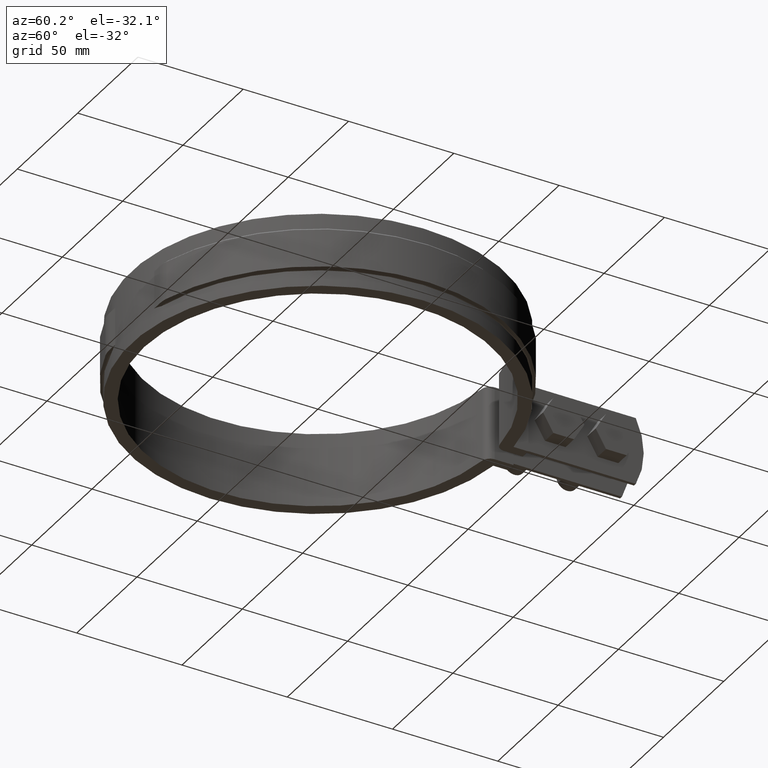
[diagram: clean part render]
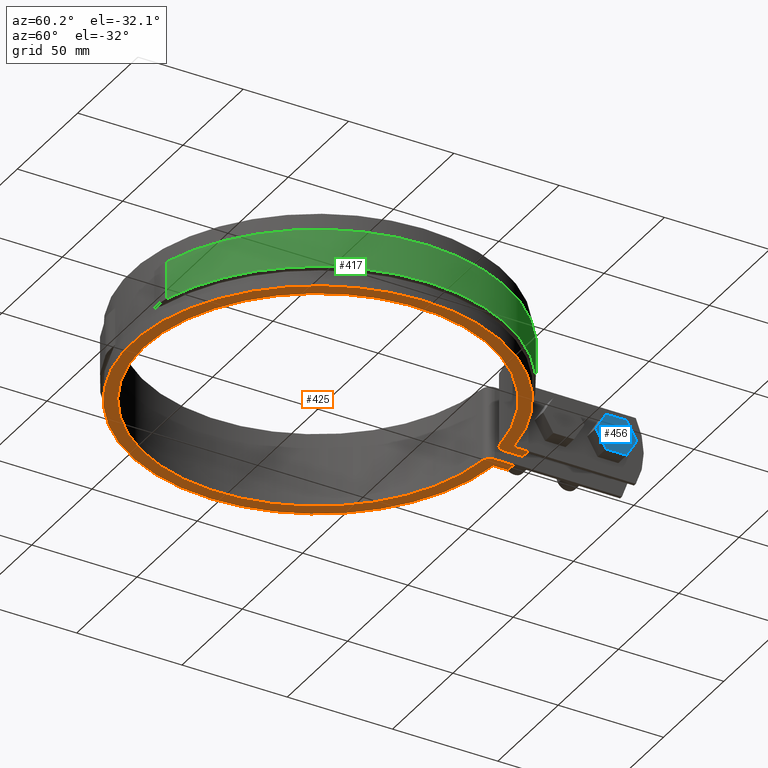
[diagram: same view with three faces highlighted in distinct colors, each labeled with its STEP entity id]
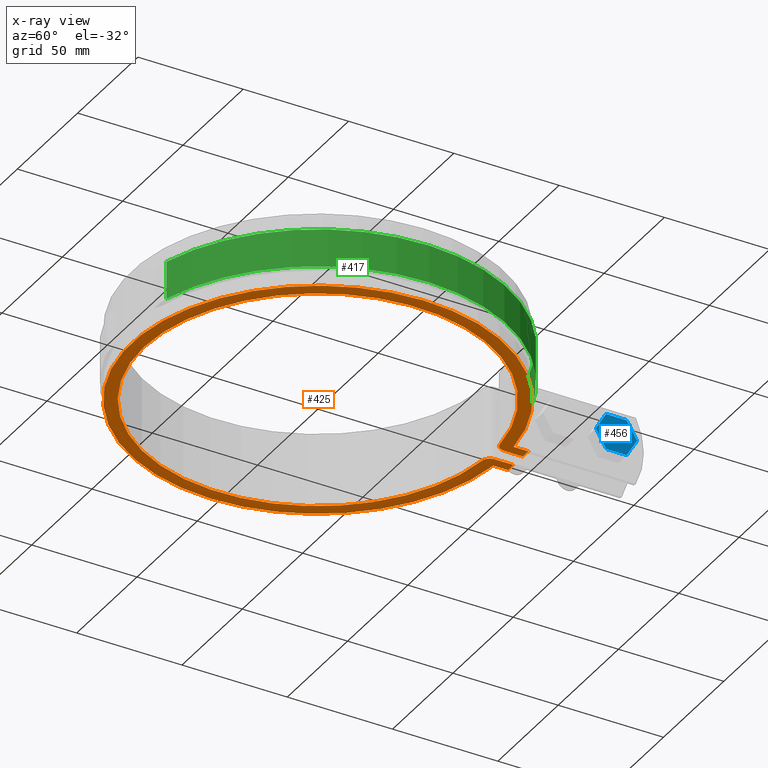
[diagram: x-ray of the same camera — body ghosted, the three highlighted faces saturated]
A machine part, auxiliary view with three faces highlighted in distinct colors.
The next image is the same camera in x-ray (body ghosted, the three faces saturated) — at least one of them is partly hidden behind the body in this view.
Their STEP definitions:

[orange] entity #425 — the highlighted planar face has unit normal (0, 0, 1).
#425 = ADVANCED_FACE( '', ( #710 ), #711, .F. );
#710 = FACE_OUTER_BOUND( '', #1788, .T. );
#711 = PLANE( '', #1789 );
#1788 = EDGE_LOOP( '', ( #4308, #4309, #4310, #4311, #4312, #4313, #4314, #4315, #4316, #4317 ) );
#1789 = AXIS2_PLACEMENT_3D( '', #4318, #4319, #4320 );
#4308 = ORIENTED_EDGE( '', *, *, #4944, .F. );
#4309 = ORIENTED_EDGE( '', *, *, #4937, .F. );
#4310 = ORIENTED_EDGE( '', *, *, #4922, .F. );
#4311 = ORIENTED_EDGE( '', *, *, #4920, .F. );
#4312 = ORIENTED_EDGE( '', *, *, #4864, .F. );
#4313 = ORIENTED_EDGE( '', *, *, #4842, .F. );
#4314 = ORIENTED_EDGE( '', *, *, #4895, .F. );
#4315 = ORIENTED_EDGE( '', *, *, #4945, .F. );
#4316 = ORIENTED_EDGE( '', *, *, #4906, .F. );
#4317 = ORIENTED_EDGE( '', *, *, #4781, .F. );
#4318 = CARTESIAN_POINT( '', ( 0.000000000000000, 0.000000000000000, -33.5000000000000 ) );
#4319 = DIRECTION( '', ( 0.000000000000000, 0.000000000000000, 1.00000000000000 ) );
#4320 = DIRECTION( '', ( 1.00000000000000, 0.000000000000000, 0.000000000000000 ) );
#4781 = EDGE_CURVE( '', #5305, #5307, #5308, .F. );
#4842 = EDGE_CURVE( '', #5420, #5422, #5423, .F. );
#4864 = EDGE_CURVE( '', #5422, #5458, #5459, .F. );
#4895 = EDGE_CURVE( '', #5508, #5420, #5510, .F. );
#4906 = EDGE_CURVE( '', #5307, #5528, #5529, .F. );
#4920 = EDGE_CURVE( '', #5458, #5551, #5552, .T. );
#4922 = EDGE_CURVE( '', #5551, #5554, #5555, .F. );
#4937 = EDGE_CURVE( '', #5554, #5573, #5574, .T. );
#4944 = EDGE_CURVE( '', #5573, #5305, #5582, .F. );
#4945 = EDGE_CURVE( '', #5528, #5508, #5583, .T. );
#5305 = VERTEX_POINT( '', #7113 );
#5307 = VERTEX_POINT( '', #7116 );
#5308 = LINE( '', #7117, #7118 );
#5420 = VERTEX_POINT( '', #7746 );
#5422 = VERTEX_POINT( '', #7749 );
#5423 = LINE( '', #7750, #7751 );
#5458 = VERTEX_POINT( '', #7999 );
#5459 = LINE( '', #8000, #8001 );
#5508 = VERTEX_POINT( '', #8366 );
#5510 = LINE( '', #8369, #8370 );
#5528 = VERTEX_POINT( '', #8403 );
#5529 = LINE( '', #8404, #8405 );
#5551 = VERTEX_POINT( '', #8434 );
#5552 = CIRCLE( '', #8435, 4.00000000000000 );
#5554 = VERTEX_POINT( '', #8438 );
#5555 = CIRCLE( '', #8439, 82.5000000000000 );
#5573 = VERTEX_POINT( '', #8464 );
#5574 = CIRCLE( '', #8465, 4.00000000000000 );
#5582 = LINE( '', #8477, #8478 );
#5583 = CIRCLE( '', #8479, 88.5000000000000 );
#7113 = CARTESIAN_POINT( '', ( -3.79999999999999, 95.1000000000000, -33.5000000000000 ) );
#7116 = CARTESIAN_POINT( '', ( -8.40000000000000, 95.1000000000000, -33.5000000000000 ) );
#7117 = CARTESIAN_POINT( '', ( -3.80000000000000, 95.1000000000000, -33.5000000000000 ) );
#7118 = VECTOR( '', #8923, 1000.00000000000 );
#7746 = CARTESIAN_POINT( '', ( 8.40000000000000, 95.1000000000000, -33.5000000000000 ) );
#7749 = CARTESIAN_POINT( '', ( 3.80000000000002, 95.1000000000000, -33.5000000000000 ) );
#7750 = CARTESIAN_POINT( '', ( 8.40000000000002, 95.1000000000000, -33.5000000000000 ) );
#7751 = VECTOR( '', #8982, 1000.00000000000 );
#7999 = CARTESIAN_POINT( '', ( 3.80000000000002, 86.1476058866409, -33.5000000000000 ) );
#8000 = CARTESIAN_POINT( '', ( 3.80000000000002, 95.1000000000000, -33.5000000000000 ) );
#8001 = VECTOR( '', #9014, 1000.00000000000 );
#8366 = CARTESIAN_POINT( '', ( 8.40000000000000, 88.1004540283420, -33.5000000000000 ) );
#8369 = CARTESIAN_POINT( '', ( 8.40000000000000, 88.1004540283420, -33.5000000000000 ) );
#8370 = VECTOR( '', #9050, 1000.00000000000 );
#8403 = CARTESIAN_POINT( '', ( -8.40000000000000, 88.1004540283420, -33.5000000000000 ) );
#8404 = CARTESIAN_POINT( '', ( -8.40000000000000, 95.1000000000000, -33.5000000000000 ) );
#8405 = VECTOR( '', #9060, 1000.00000000000 );
#8434 = CARTESIAN_POINT( '', ( 7.43930635838153, 82.1639015681835, -33.5000000000000 ) );
#8435 = AXIS2_PLACEMENT_3D( '', #9086, #9087, #9088 );
#8438 = CARTESIAN_POINT( '', ( -7.43930635838154, 82.1639015681835, -33.5000000000000 ) );
#8439 = AXIS2_PLACEMENT_3D( '', #9090, #9091, #9092 );
#8464 = CARTESIAN_POINT( '', ( -3.79999999999999, 86.1476058866409, -33.5000000000000 ) );
#8465 = AXIS2_PLACEMENT_3D( '', #9121, #9122, #9123 );
#8477 = CARTESIAN_POINT( '', ( -3.79999999999999, 86.1476058866409, -33.5000000000000 ) );
#8478 = VECTOR( '', #9134, 1000.00000000000 );
#8479 = AXIS2_PLACEMENT_3D( '', #9135, #9136, #9137 );
#8923 = DIRECTION( '', ( 1.00000000000000, 0.000000000000000, 0.000000000000000 ) );
#8982 = DIRECTION( '', ( 1.00000000000000, 0.000000000000000, 0.000000000000000 ) );
#9014 = DIRECTION( '', ( 6.10365667473321E-017, 1.00000000000000, 0.000000000000000 ) );
#9050 = DIRECTION( '', ( -6.42490176287706E-017, -1.00000000000000, 0.000000000000000 ) );
#9060 = DIRECTION( '', ( 6.42490176287706E-017, 1.00000000000000, 0.000000000000000 ) );
#9086 = CARTESIAN_POINT( '', ( 7.80000000000001, 86.1476058866409, -33.5000000000000 ) );
#9087 = DIRECTION( '', ( 0.000000000000000, 0.000000000000000, 1.00000000000000 ) );
#9088 = DIRECTION( '', ( 1.00000000000000, 0.000000000000000, 0.000000000000000 ) );
#9090 = CARTESIAN_POINT( '', ( 0.000000000000000, 0.000000000000000, -33.5000000000000 ) );
#9091 = DIRECTION( '', ( 0.000000000000000, 0.000000000000000, 1.00000000000000 ) );
#9092 = DIRECTION( '', ( 1.00000000000000, 0.000000000000000, 0.000000000000000 ) );
#9121 = CARTESIAN_POINT( '', ( -7.79999999999999, 86.1476058866409, -33.5000000000000 ) );
#9122 = DIRECTION( '', ( 0.000000000000000, 0.000000000000000, 1.00000000000000 ) );
#9123 = DIRECTION( '', ( 1.00000000000000, 0.000000000000000, 0.000000000000000 ) );
#9134 = DIRECTION( '', ( -6.10365667473321E-017, -1.00000000000000, 0.000000000000000 ) );
#9135 = CARTESIAN_POINT( '', ( 0.000000000000000, 0.000000000000000, -33.5000000000000 ) );
#9136 = DIRECTION( '', ( 0.000000000000000, 0.000000000000000, 1.00000000000000 ) );
#9137 = DIRECTION( '', ( 1.00000000000000, 0.000000000000000, 0.000000000000000 ) );

[blue] entity #456 — the highlighted planar face has unit normal (-1, -0, -0).
#456 = ADVANCED_FACE( '', ( #778 ), #779, .F. );
#778 = FACE_OUTER_BOUND( '', #1856, .T. );
#779 = PLANE( '', #1857 );
#1856 = EDGE_LOOP( '', ( #4558, #4559, #4560, #4561, #4562, #4563 ) );
#1857 = AXIS2_PLACEMENT_3D( '', #4564, #4565, #4566 );
#4558 = ORIENTED_EDGE( '', *, *, #5011, .T. );
#4559 = ORIENTED_EDGE( '', *, *, #5012, .T. );
#4560 = ORIENTED_EDGE( '', *, *, #5013, .T. );
#4561 = ORIENTED_EDGE( '', *, *, #5009, .T. );
#4562 = ORIENTED_EDGE( '', *, *, #5014, .T. );
#4563 = ORIENTED_EDGE( '', *, *, #5015, .T. );
#4564 = CARTESIAN_POINT( '', ( 13.5000000000000, 119.280381878054, -7.50000000000252 ) );
#4565 = DIRECTION( '', ( -1.00000000000000, -6.26427921880513E-017, -3.08148791102233E-033 ) );
#4566 = DIRECTION( '', ( -6.26427921880513E-017, 1.00000000000000, -3.79822709830731E-065 ) );
#5009 = EDGE_CURVE( '', #5690, #5688, #5691, .T. );
#5011 = EDGE_CURVE( '', #5693, #5694, #5695, .T. );
#5012 = EDGE_CURVE( '', #5694, #5696, #5697, .T. );
#5013 = EDGE_CURVE( '', #5696, #5690, #5698, .T. );
#5014 = EDGE_CURVE( '', #5688, #5699, #5700, .T. );
#5015 = EDGE_CURVE( '', #5699, #5693, #5701, .T. );
#5688 = VERTEX_POINT( '', #8670 );
#5690 = VERTEX_POINT( '', #8673 );
#5691 = LINE( '', #8674, #8675 );
#5693 = VERTEX_POINT( '', #8678 );
#5694 = VERTEX_POINT( '', #8679 );
#5695 = LINE( '', #8680, #8681 );
#5696 = VERTEX_POINT( '', #8682 );
#5697 = LINE( '', #8683, #8684 );
#5698 = LINE( '', #8685, #8686 );
#5699 = VERTEX_POINT( '', #8687 );
#5700 = LINE( '', #8688, #8689 );
#5701 = LINE( '', #8690, #8691 );
#8670 = CARTESIAN_POINT( '', ( 13.5000000000000, 138.910291030496, -7.50000000000252 ) );
#8673 = CARTESIAN_POINT( '', ( 13.5000000000000, 143.817768318606, -16.0000000000000 ) );
#8674 = CARTESIAN_POINT( '', ( 13.5000000000000, 143.817768318606, -16.0000000000000 ) );
#8675 = VECTOR( '', #9237, 1000.00000000000 );
#8678 = CARTESIAN_POINT( '', ( 13.5000000000000, 124.187859166165, -16.0000000000000 ) );
#8679 = CARTESIAN_POINT( '', ( 13.5000000000000, 129.095336454275, -24.4999999999975 ) );
#8680 = CARTESIAN_POINT( '', ( 13.5000000000000, 124.187859166165, -16.0000000000000 ) );
#8681 = VECTOR( '', #9239, 1000.00000000000 );
#8682 = CARTESIAN_POINT( '', ( 13.5000000000000, 138.910291030496, -24.4999999999975 ) );
#8683 = CARTESIAN_POINT( '', ( 13.5000000000000, 129.095336454275, -24.4999999999975 ) );
#8684 = VECTOR( '', #9240, 1000.00000000000 );
#8685 = CARTESIAN_POINT( '', ( 13.5000000000000, 138.910291030496, -24.4999999999975 ) );
#8686 = VECTOR( '', #9241, 1000.00000000000 );
#8687 = CARTESIAN_POINT( '', ( 13.5000000000000, 129.095336454275, -7.50000000000252 ) );
#8688 = CARTESIAN_POINT( '', ( 13.5000000000000, 138.910291030496, -7.50000000000252 ) );
#8689 = VECTOR( '', #9242, 1000.00000000000 );
#8690 = CARTESIAN_POINT( '', ( 13.5000000000000, 129.095336454275, -7.50000000000252 ) );
#8691 = VECTOR( '', #9243, 1000.00000000000 );
#9237 = DIRECTION( '', ( 3.13213960940257E-017, -0.500000000000000, 0.866025403784439 ) );
#9239 = DIRECTION( '', ( -3.13213960940257E-017, 0.500000000000000, -0.866025403784439 ) );
#9240 = DIRECTION( '', ( -6.26427921880514E-017, 1.00000000000000, -1.66533453693790E-016 ) );
#9241 = DIRECTION( '', ( -3.13213960940257E-017, 0.500000000000000, 0.866025403784439 ) );
#9242 = DIRECTION( '', ( 6.26427921880513E-017, -1.00000000000000, 5.55111512312633E-017 ) );
#9243 = DIRECTION( '', ( 3.13213960940257E-017, -0.500000000000000, -0.866025403784438 ) );

[green] entity #417 — the highlighted cylindrical surface (partial cylindrical patch) has radius 90 mm, axis along (0, 0, 1).
#417 = ADVANCED_FACE( '', ( #694 ), #695, .T. );
#694 = FACE_OUTER_BOUND( '', #1772, .T. );
#695 = CYLINDRICAL_SURFACE( '', #1773, 90.0000000000000 );
#1772 = EDGE_LOOP( '', ( #4248, #4249, #4250, #4251 ) );
#1773 = AXIS2_PLACEMENT_3D( '', #4252, #4253, #4254 );
#4248 = ORIENTED_EDGE( '', *, *, #4892, .T. );
#4249 = ORIENTED_EDGE( '', *, *, #4935, .T. );
#4250 = ORIENTED_EDGE( '', *, *, #4928, .F. );
#4251 = ORIENTED_EDGE( '', *, *, #4930, .T. );
#4252 = CARTESIAN_POINT( '', ( 1.38777878078145E-014, -4.16333634234434E-014, -26.0000000000000 ) );
#4253 = DIRECTION( '', ( 0.000000000000000, 0.000000000000000, 1.00000000000000 ) );
#4254 = DIRECTION( '', ( 0.280000000000000, -0.960000000000000, 0.000000000000000 ) );
#4892 = EDGE_CURVE( '', #5504, #5505, #5506, .F. );
#4928 = EDGE_CURVE( '', #5490, #5496, #5562, .T. );
#4930 = EDGE_CURVE( '', #5490, #5504, #5564, .T. );
#4935 = EDGE_CURVE( '', #5505, #5496, #5571, .T. );
#5490 = VERTEX_POINT( '', #8340 );
#5496 = VERTEX_POINT( '', #8348 );
#5504 = VERTEX_POINT( '', #8358 );
#5505 = VERTEX_POINT( '', #8359 );
#5506 = LINE( '', #8360, #8361 );
#5562 = LINE( '', #8448, #8449 );
#5564 = CIRCLE( '', #8452, 90.0000000000000 );
#5571 = CIRCLE( '', #8462, 90.0000000000000 );
#8340 = CARTESIAN_POINT( '', ( 25.2000000000000, -86.4000000000000, -25.0000000000000 ) );
#8348 = CARTESIAN_POINT( '', ( 25.2000000000000, -86.4000000000000, -7.00000000000001 ) );
#8358 = CARTESIAN_POINT( '', ( 8.40000000000000, 89.6071425724534, -25.0000000000000 ) );
#8359 = CARTESIAN_POINT( '', ( 8.40000000000000, 89.6071425724534, -7.00000000000002 ) );
#8360 = CARTESIAN_POINT( '', ( 8.40000000000000, 89.6071425724534, -26.0000000000000 ) );
#8361 = VECTOR( '', #9048, 1000.00000000000 );
#8448 = CARTESIAN_POINT( '', ( 25.2000000000000, -86.4000000000000, -26.0000000000000 ) );
#8449 = VECTOR( '', #9104, 1000.00000000000 );
#8452 = AXIS2_PLACEMENT_3D( '', #9106, #9107, #9108 );
#8462 = AXIS2_PLACEMENT_3D( '', #9115, #9116, #9117 );
#9048 = DIRECTION( '', ( 0.000000000000000, 0.000000000000000, -1.00000000000000 ) );
#9104 = DIRECTION( '', ( 0.000000000000000, 0.000000000000000, 1.00000000000000 ) );
#9106 = CARTESIAN_POINT( '', ( 1.38777878078145E-014, -4.16333634234434E-014, -25.0000000000000 ) );
#9107 = DIRECTION( '', ( 0.000000000000000, 0.000000000000000, 1.00000000000000 ) );
#9108 = DIRECTION( '', ( 1.00000000000000, 0.000000000000000, 0.000000000000000 ) );
#9115 = CARTESIAN_POINT( '', ( 1.38777878078145E-014, -4.16333634234434E-014, -7.00000000000002 ) );
#9116 = DIRECTION( '', ( 0.000000000000000, 0.000000000000000, -1.00000000000000 ) );
#9117 = DIRECTION( '', ( -1.00000000000000, 0.000000000000000, 0.000000000000000 ) );